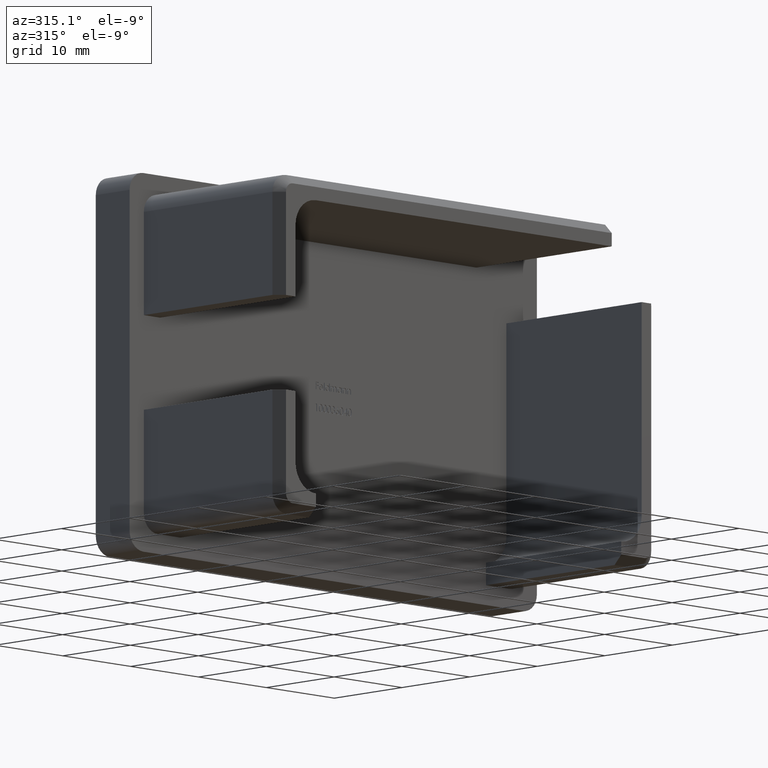
[diagram: clean part render]
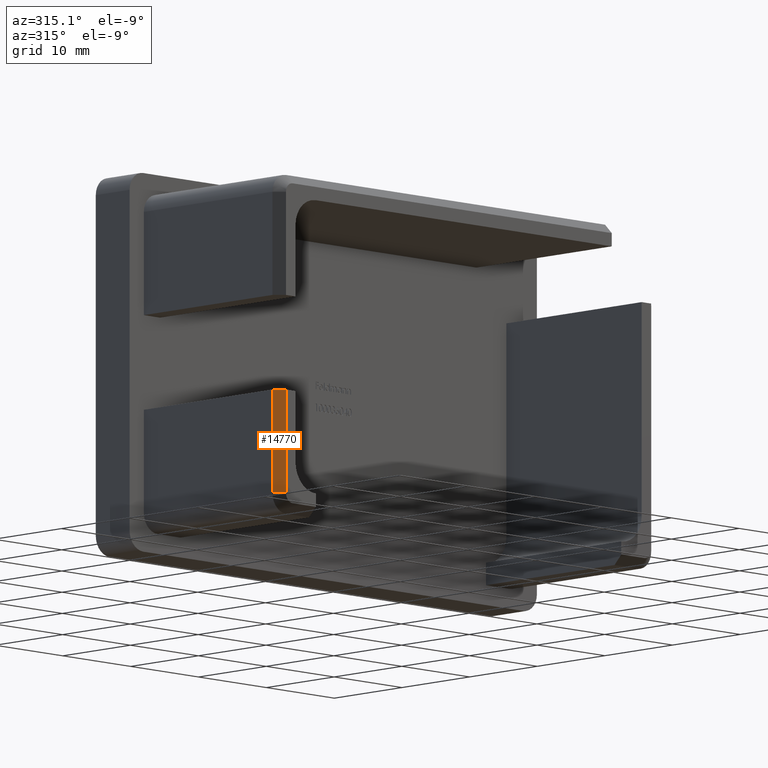
[diagram: same view with one face highlighted and labeled with its STEP entity id]
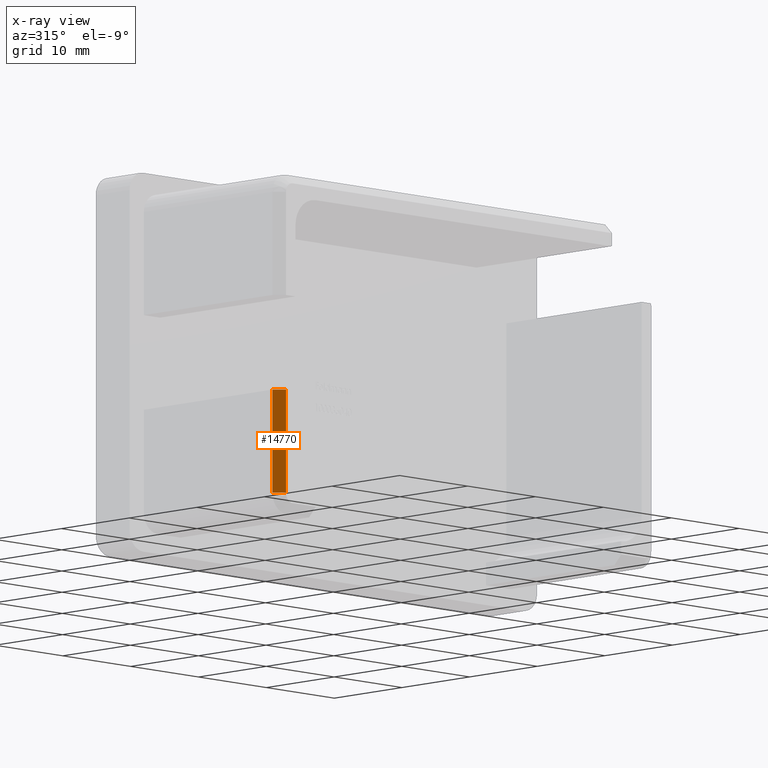
[diagram: x-ray of the same camera — body ghosted, the highlighted face saturated]
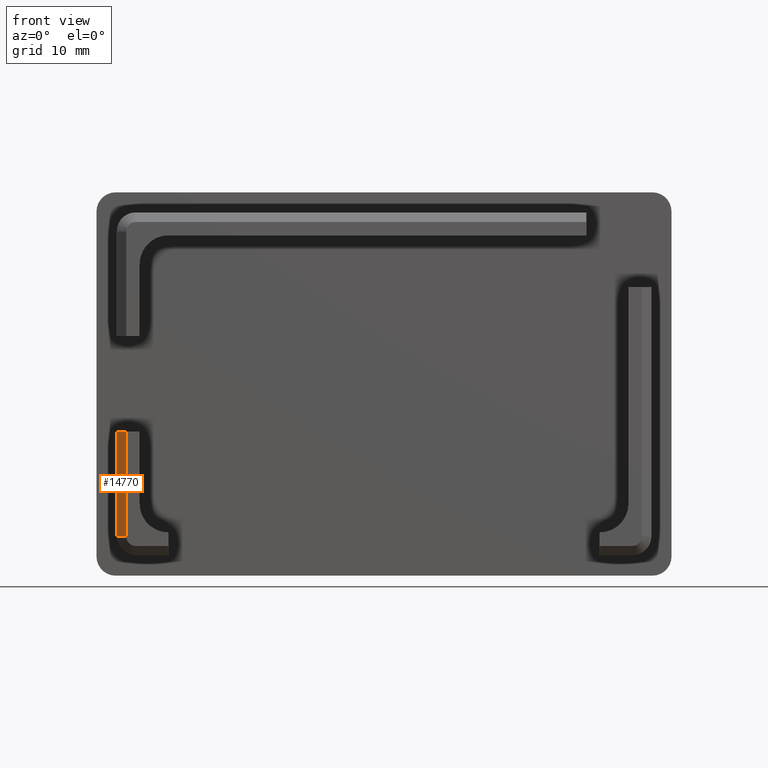
[diagram: same view with one face highlighted and labeled with its STEP entity id]
A machine part, auxiliary view. The second image highlights one B-rep face of the part: STEP entity #14770.
The next image is the same camera in x-ray: the body ghosted, the highlighted face saturated — about 0% of this face is hidden behind the body in this view.
A second angle (front view) of the same face is appended — the face is thin or edge-on in the first view.
In plain terms, the highlighted planar face has unit normal (-0.7071, -0.7071, 0).
Its self-contained STEP definition (entity closure, byte-faithful):
#427 = LINE ( 'NONE', #12841, #4780 ) ;
#1713 = VECTOR ( 'NONE', #13435, 1000.000000000000100 ) ;
#1917 = ORIENTED_EDGE ( 'NONE', *, *, #6630, .F. ) ;
#2040 = CARTESIAN_POINT ( 'NONE',  ( -26.89999999999999900, -20.00000000000000000, 1.446947643527940600E-014 ) ) ;
#2205 = FACE_OUTER_BOUND ( 'NONE', #3497, .T. ) ;
#2413 = LINE ( 'NONE', #14714, #8087 ) ;
#2587 = ORIENTED_EDGE ( 'NONE', *, *, #6367, .F. ) ;
#2724 = ORIENTED_EDGE ( 'NONE', *, *, #6445, .F. ) ;
#3064 = DIRECTION ( 'NONE',  ( -5.378987522408701900E-016, 0.0000000000000000000, -1.000000000000000000 ) ) ;
#3353 = DIRECTION ( 'NONE',  ( 5.378987522408701900E-016, 0.0000000000000000000, 1.000000000000000000 ) ) ;
#3497 = EDGE_LOOP ( 'NONE', ( #2724, #1917, #4501, #2587 ) ) ;
#3715 = VECTOR ( 'NONE', #13706, 999.9999999999998900 ) ;
#3787 = CARTESIAN_POINT ( 'NONE',  ( -27.90000000000000200, -18.99999999999999600, -15.90000000000000400 ) ) ;
#4383 = DIRECTION ( 'NONE',  ( 5.378987522408701900E-016, 0.0000000000000000000, 1.000000000000000000 ) ) ;
#4447 = LINE ( 'NONE', #14443, #3715 ) ;
#4501 = ORIENTED_EDGE ( 'NONE', *, *, #5303, .T. ) ;
#4780 = VECTOR ( 'NONE', #3353, 1000.000000000000000 ) ;
#4918 = CARTESIAN_POINT ( 'NONE',  ( -26.89999999999999900, -20.00000000000000000, -4.999999999999996400 ) ) ;
#5303 = EDGE_CURVE ( 'NONE', #10810, #11184, #4447, .T. ) ;
#5379 = CARTESIAN_POINT ( 'NONE',  ( -26.90000000000000600, -20.00000000000000000, -15.90000000000000400 ) ) ;
#6367 = EDGE_CURVE ( 'NONE', #13994, #11184, #2413, .T. ) ;
#6445 = EDGE_CURVE ( 'NONE', #6734, #13994, #7541, .T. ) ;
#6630 = EDGE_CURVE ( 'NONE', #10810, #6734, #427, .T. ) ;
#6734 = VERTEX_POINT ( 'NONE', #8334 ) ;
#7541 = LINE ( 'NONE', #14581, #1713 ) ;
#7956 = DIRECTION ( 'NONE',  ( -0.7071067811865509000, -0.7071067811865441300, 3.803518553013037700E-016 ) ) ;
#8087 = VECTOR ( 'NONE', #3064, 1000.000000000000000 ) ;
#8334 = CARTESIAN_POINT ( 'NONE',  ( -27.89999999999999500, -18.99999999999999600, -4.999999999999997300 ) ) ;
#10141 = AXIS2_PLACEMENT_3D ( 'NONE', #2040, #7956, #4383 ) ;
#10375 = PLANE ( 'NONE',  #10141 ) ;
#10810 = VERTEX_POINT ( 'NONE', #3787 ) ;
#11184 = VERTEX_POINT ( 'NONE', #5379 ) ;
#12841 = CARTESIAN_POINT ( 'NONE',  ( -27.89999999999999500, -18.99999999999999600, -4.999999999999997300 ) ) ;
#13435 = DIRECTION ( 'NONE',  ( 0.7071067811865441300, -0.7071067811865509000, 5.110978055611239200E-016 ) ) ;
#13706 = DIRECTION ( 'NONE',  ( 0.7071067811865439100, -0.7071067811865512400, 0.0000000000000000000 ) ) ;
#13994 = VERTEX_POINT ( 'NONE', #4918 ) ;
#14443 = CARTESIAN_POINT ( 'NONE',  ( -27.90000000000000200, -18.99999999999999600, -15.90000000000000400 ) ) ;
#14581 = CARTESIAN_POINT ( 'NONE',  ( -26.89999999999999900, -20.00000000000000400, -4.999999999999996400 ) ) ;
#14714 = CARTESIAN_POINT ( 'NONE',  ( -26.90000000000000200, -20.00000000000000000, -15.90000000000000400 ) ) ;
#14770 = ADVANCED_FACE ( 'NONE', ( #2205 ), #10375, .T. ) ;